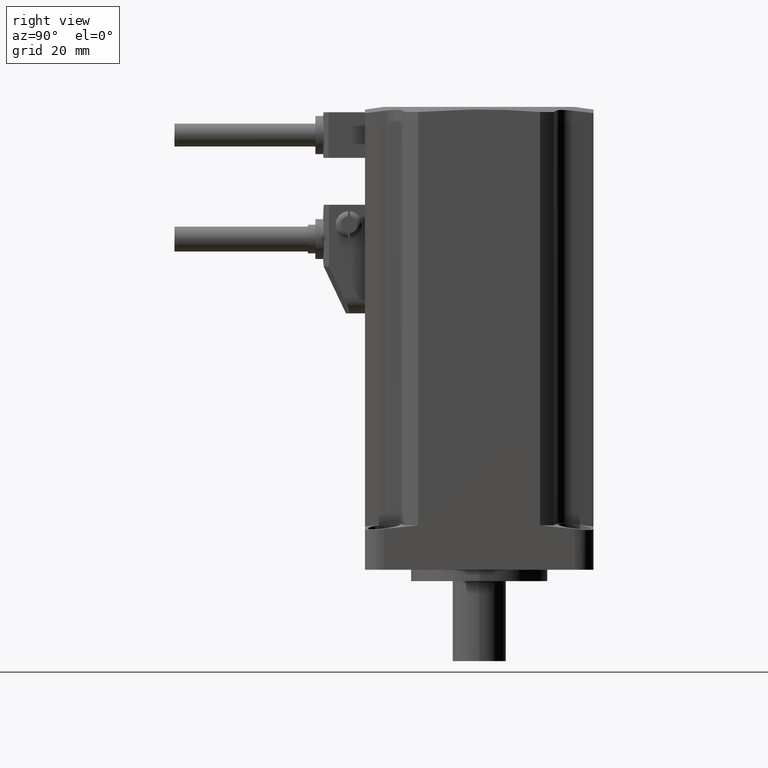
[diagram: clean part render]
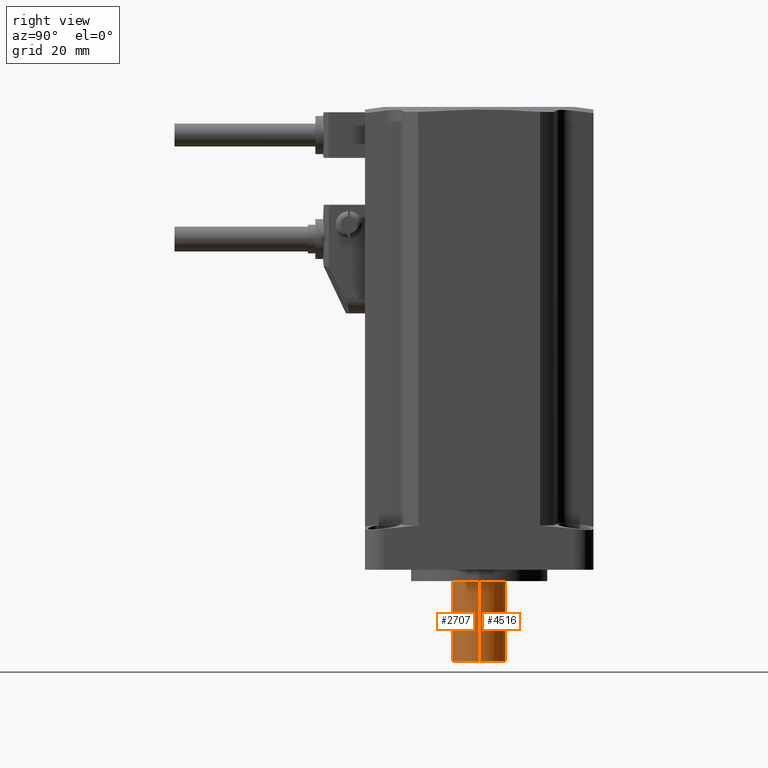
[diagram: same view with one multi-face feature highlighted, each face labeled with its STEP entity id]
A machine part, right view. The highlighted faces form ONE feature: a constant-radius fillet chain: 2 tangent blend faces with common blend radius 7 mm. The faces share edges in the B-rep.
Their STEP definitions:
[1] entity #4516 (Cylinder):
#63 = ORIENTED_EDGE ( 'NONE', *, *, #2933, .T. ) ;
#386 = AXIS2_PLACEMENT_3D ( 'NONE', #4574, #4212, #2578 ) ;
#585 = LINE ( 'NONE', #3192, #4887 ) ;
#597 = VECTOR ( 'NONE', #1354, 1000.000000000000000 ) ;
#888 = EDGE_LOOP ( 'NONE', ( #4678, #4236, #63, #2677 ) ) ;
#1275 = VERTEX_POINT ( 'NONE', #1368 ) ;
#1354 = DIRECTION ( 'NONE',  ( -0.0000000000000000000, -0.0000000000000000000, -1.000000000000000000 ) ) ;
#1368 = CARTESIAN_POINT ( 'NONE',  ( -7.000000000000000000, 0.0000000000000000000, -3.000000000000000000 ) ) ;
#1476 = CYLINDRICAL_SURFACE ( 'NONE', #386, 7.000000000000000000 ) ;
#1791 = CARTESIAN_POINT ( 'NONE',  ( 7.000000000000000000, 8.572527594031473190E-16, -24.00000000000000000 ) ) ;
#1802 = EDGE_CURVE ( 'NONE', #3274, #1275, #3259, .T. ) ;
#1988 = AXIS2_PLACEMENT_3D ( 'NONE', #2492, #2894, #4035 ) ;
#2141 = CIRCLE ( 'NONE', #1988, 7.000000000000000000 ) ;
#2159 = EDGE_CURVE ( 'NONE', #1275, #4893, #3621, .T. ) ;
#2246 = EDGE_CURVE ( 'NONE', #3274, #4870, #585, .T. ) ;
#2492 = CARTESIAN_POINT ( 'NONE',  ( 0.0000000000000000000, 0.0000000000000000000, -24.00000000000000000 ) ) ;
#2578 = DIRECTION ( 'NONE',  ( -1.000000000000000000, 0.0000000000000000000, 0.0000000000000000000 ) ) ;
#2677 = ORIENTED_EDGE ( 'NONE', *, *, #2159, .F. ) ;
#2894 = DIRECTION ( 'NONE',  ( 0.0000000000000000000, 0.0000000000000000000, 1.000000000000000000 ) ) ;
#2933 = EDGE_CURVE ( 'NONE', #4870, #4893, #2141, .T. ) ;
#3030 = FACE_OUTER_BOUND ( 'NONE', #888, .T. ) ;
#3102 = AXIS2_PLACEMENT_3D ( 'NONE', #4038, #4459, #3681 ) ;
#3192 = CARTESIAN_POINT ( 'NONE',  ( 7.000000000000000000, 8.572527594031473190E-16, 0.0000000000000000000 ) ) ;
#3259 = CIRCLE ( 'NONE', #3102, 7.000000000000000000 ) ;
#3274 = VERTEX_POINT ( 'NONE', #3347 ) ;
#3347 = CARTESIAN_POINT ( 'NONE',  ( 7.000000000000000000, 8.572527594031473190E-16, -3.000000000000000000 ) ) ;
#3354 = CARTESIAN_POINT ( 'NONE',  ( -7.000000000000000000, 0.0000000000000000000, -24.00000000000000000 ) ) ;
#3621 = LINE ( 'NONE', #3673, #597 ) ;
#3673 = CARTESIAN_POINT ( 'NONE',  ( -7.000000000000000000, 0.0000000000000000000, 0.0000000000000000000 ) ) ;
#3681 = DIRECTION ( 'NONE',  ( -1.000000000000000000, 0.0000000000000000000, 0.0000000000000000000 ) ) ;
#4035 = DIRECTION ( 'NONE',  ( -1.000000000000000000, 0.0000000000000000000, 0.0000000000000000000 ) ) ;
#4038 = CARTESIAN_POINT ( 'NONE',  ( 0.0000000000000000000, 0.0000000000000000000, -3.000000000000000000 ) ) ;
#4212 = DIRECTION ( 'NONE',  ( -0.0000000000000000000, -0.0000000000000000000, -1.000000000000000000 ) ) ;
#4236 = ORIENTED_EDGE ( 'NONE', *, *, #2246, .T. ) ;
#4459 = DIRECTION ( 'NONE',  ( 0.0000000000000000000, 0.0000000000000000000, 1.000000000000000000 ) ) ;
#4516 = ADVANCED_FACE ( 'NONE', ( #3030 ), #1476, .T. ) ;
#4574 = CARTESIAN_POINT ( 'NONE',  ( 0.0000000000000000000, 0.0000000000000000000, 0.0000000000000000000 ) ) ;
#4678 = ORIENTED_EDGE ( 'NONE', *, *, #1802, .F. ) ;
#4738 = DIRECTION ( 'NONE',  ( -0.0000000000000000000, -0.0000000000000000000, -1.000000000000000000 ) ) ;
#4870 = VERTEX_POINT ( 'NONE', #1791 ) ;
#4887 = VECTOR ( 'NONE', #4738, 1000.000000000000000 ) ;
#4893 = VERTEX_POINT ( 'NONE', #3354 ) ;
[2] entity #2707 (Cylinder):
#216 = CIRCLE ( 'NONE', #1526, 7.000000000000000000 ) ;
#585 = LINE ( 'NONE', #3192, #4887 ) ;
#597 = VECTOR ( 'NONE', #1354, 1000.000000000000000 ) ;
#608 = FACE_OUTER_BOUND ( 'NONE', #984, .T. ) ;
#775 = CIRCLE ( 'NONE', #1426, 7.000000000000000000 ) ;
#802 = EDGE_CURVE ( 'NONE', #4893, #4870, #775, .T. ) ;
#959 = ORIENTED_EDGE ( 'NONE', *, *, #802, .T. ) ;
#984 = EDGE_LOOP ( 'NONE', ( #1618, #2205, #2283, #959 ) ) ;
#994 = CYLINDRICAL_SURFACE ( 'NONE', #1192, 7.000000000000000000 ) ;
#1192 = AXIS2_PLACEMENT_3D ( 'NONE', #2125, #1749, #3666 ) ;
#1217 = DIRECTION ( 'NONE',  ( -1.000000000000000000, 0.0000000000000000000, 0.0000000000000000000 ) ) ;
#1275 = VERTEX_POINT ( 'NONE', #1368 ) ;
#1354 = DIRECTION ( 'NONE',  ( -0.0000000000000000000, -0.0000000000000000000, -1.000000000000000000 ) ) ;
#1368 = CARTESIAN_POINT ( 'NONE',  ( -7.000000000000000000, 0.0000000000000000000, -3.000000000000000000 ) ) ;
#1426 = AXIS2_PLACEMENT_3D ( 'NONE', #2397, #2726, #1217 ) ;
#1526 = AXIS2_PLACEMENT_3D ( 'NONE', #4547, #3661, #4121 ) ;
#1618 = ORIENTED_EDGE ( 'NONE', *, *, #2246, .F. ) ;
#1749 = DIRECTION ( 'NONE',  ( -0.0000000000000000000, -0.0000000000000000000, -1.000000000000000000 ) ) ;
#1791 = CARTESIAN_POINT ( 'NONE',  ( 7.000000000000000000, 8.572527594031473190E-16, -24.00000000000000000 ) ) ;
#2125 = CARTESIAN_POINT ( 'NONE',  ( 0.0000000000000000000, 0.0000000000000000000, 0.0000000000000000000 ) ) ;
#2159 = EDGE_CURVE ( 'NONE', #1275, #4893, #3621, .T. ) ;
#2205 = ORIENTED_EDGE ( 'NONE', *, *, #4205, .F. ) ;
#2246 = EDGE_CURVE ( 'NONE', #3274, #4870, #585, .T. ) ;
#2283 = ORIENTED_EDGE ( 'NONE', *, *, #2159, .T. ) ;
#2397 = CARTESIAN_POINT ( 'NONE',  ( 0.0000000000000000000, 0.0000000000000000000, -24.00000000000000000 ) ) ;
#2707 = ADVANCED_FACE ( 'NONE', ( #608 ), #994, .T. ) ;
#2726 = DIRECTION ( 'NONE',  ( 0.0000000000000000000, 0.0000000000000000000, 1.000000000000000000 ) ) ;
#3192 = CARTESIAN_POINT ( 'NONE',  ( 7.000000000000000000, 8.572527594031473190E-16, 0.0000000000000000000 ) ) ;
#3274 = VERTEX_POINT ( 'NONE', #3347 ) ;
#3347 = CARTESIAN_POINT ( 'NONE',  ( 7.000000000000000000, 8.572527594031473190E-16, -3.000000000000000000 ) ) ;
#3354 = CARTESIAN_POINT ( 'NONE',  ( -7.000000000000000000, 0.0000000000000000000, -24.00000000000000000 ) ) ;
#3621 = LINE ( 'NONE', #3673, #597 ) ;
#3661 = DIRECTION ( 'NONE',  ( 0.0000000000000000000, 0.0000000000000000000, 1.000000000000000000 ) ) ;
#3666 = DIRECTION ( 'NONE',  ( -1.000000000000000000, 0.0000000000000000000, 0.0000000000000000000 ) ) ;
#3673 = CARTESIAN_POINT ( 'NONE',  ( -7.000000000000000000, 0.0000000000000000000, 0.0000000000000000000 ) ) ;
#4121 = DIRECTION ( 'NONE',  ( -1.000000000000000000, 0.0000000000000000000, 0.0000000000000000000 ) ) ;
#4205 = EDGE_CURVE ( 'NONE', #1275, #3274, #216, .T. ) ;
#4547 = CARTESIAN_POINT ( 'NONE',  ( 0.0000000000000000000, 0.0000000000000000000, -3.000000000000000000 ) ) ;
#4738 = DIRECTION ( 'NONE',  ( -0.0000000000000000000, -0.0000000000000000000, -1.000000000000000000 ) ) ;
#4870 = VERTEX_POINT ( 'NONE', #1791 ) ;
#4887 = VECTOR ( 'NONE', #4738, 1000.000000000000000 ) ;
#4893 = VERTEX_POINT ( 'NONE', #3354 ) ;